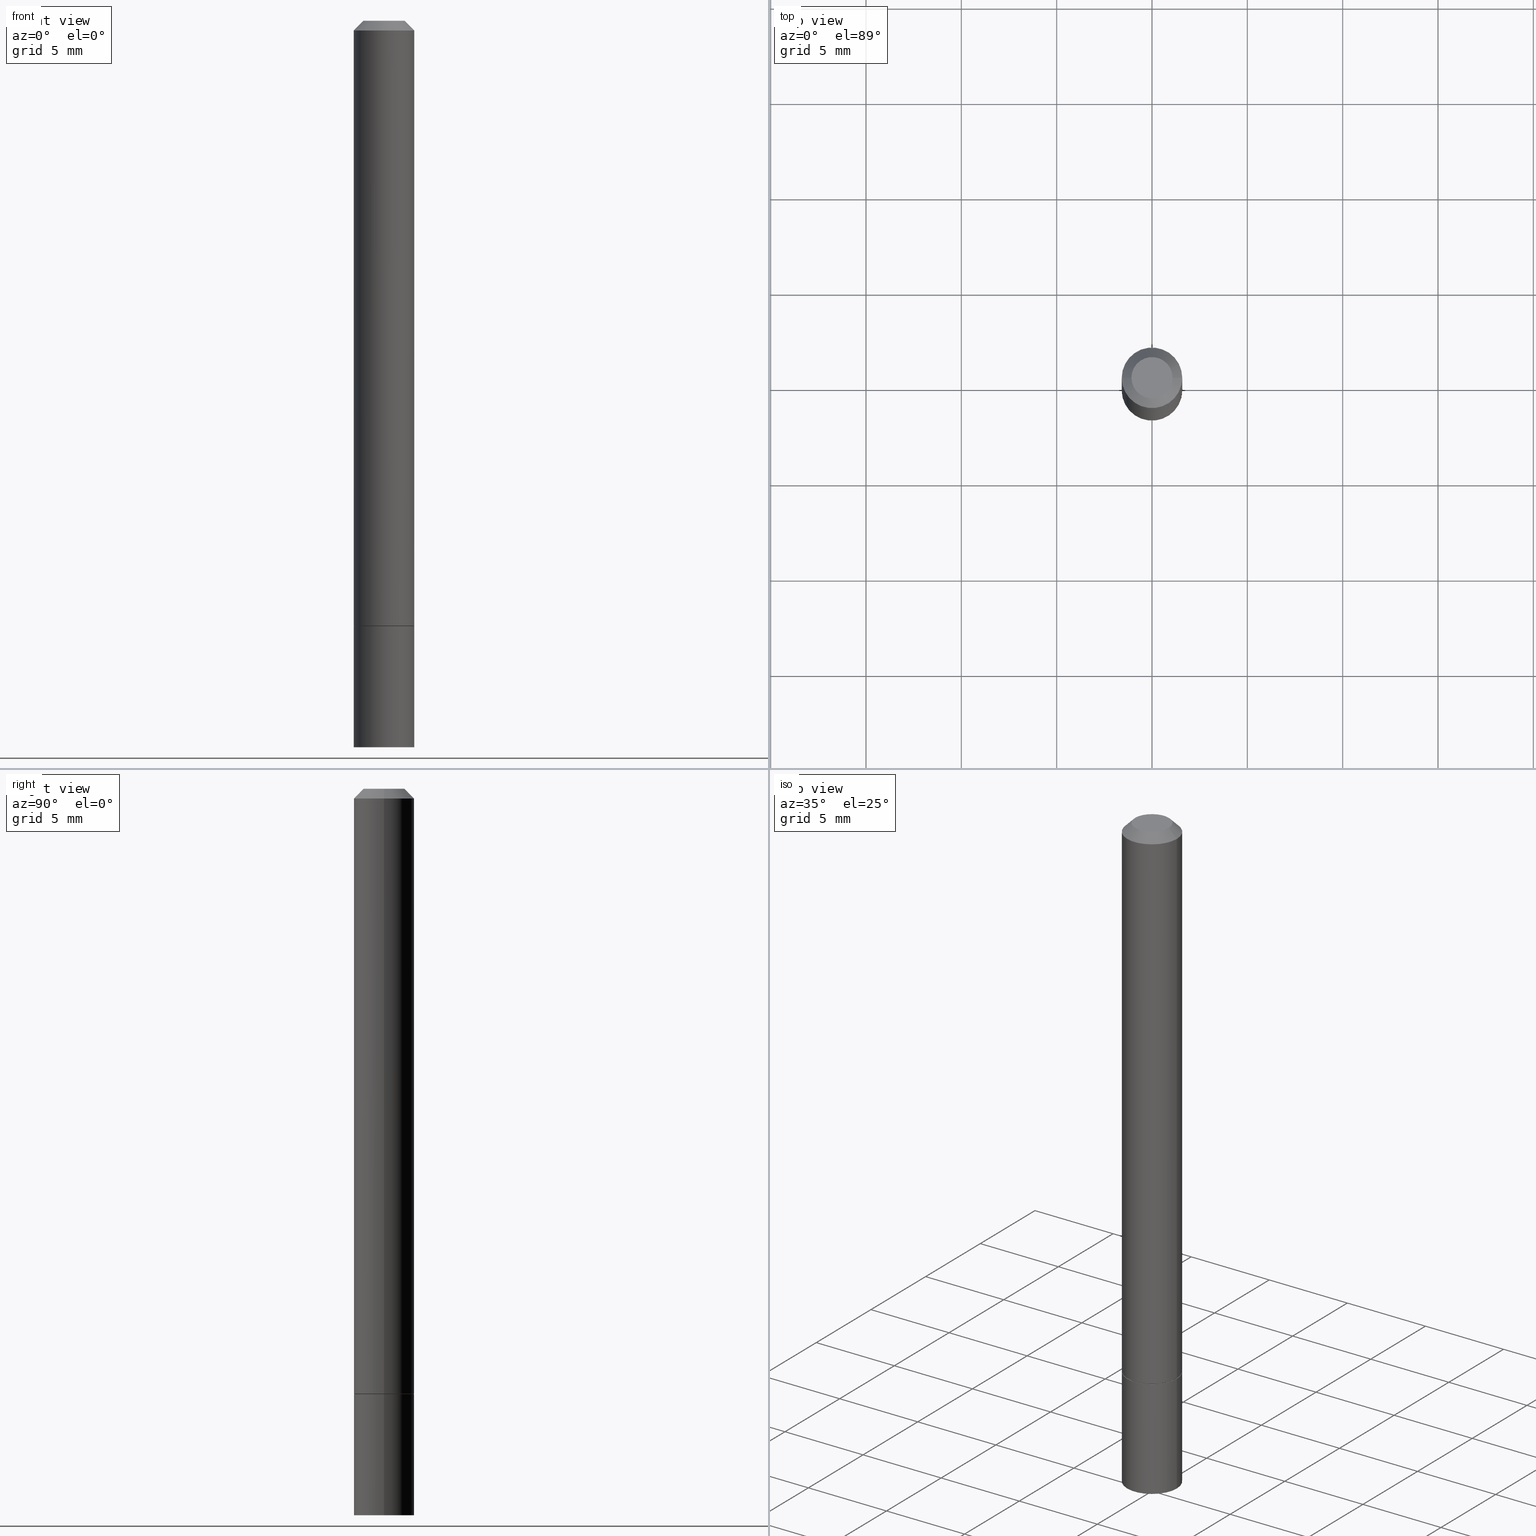
[diagram: canonical four-view strip — front | top / right | iso, engineering-drawing reading convention]
A machine part, canonical four-view strip (front | top / right | iso — engineering-drawing reading convention). The complete STEP part file that produces these views, byte-faithful:
ISO-10303-21;
HEADER;
FILE_DESCRIPTION (( 'STEP AP203' ),
    '1' );
FILE_NAME ('31360.STEP',
    '2024-02-27T13:04:04',
    ( '' ),
    ( '' ),
    'SwSTEP 2.0',
    'SolidWorks 2023',
    '' );
FILE_SCHEMA (( 'CONFIG_CONTROL_DESIGN' ));
ENDSEC;

DATA;
#1 = ORIENTED_EDGE ( 'NONE', *, *, #277, .T. ) ;
#2 = VECTOR ( 'NONE', #300, 39.37007874015748143 ) ;
#3 = EDGE_LOOP ( 'NONE', ( #276, #159, #79, #17 ) ) ;
#4 = DATE_AND_TIME ( #195, #214 ) ;
#5 = ADVANCED_FACE ( 'NONE', ( #310 ), #32, .T. ) ;
#6 = FACE_OUTER_BOUND ( 'NONE', #329, .T. ) ;
#7 = APPROVAL_ROLE ( '' ) ;
#8 = CARTESIAN_POINT ( 'NONE',  ( 0.06250000000000001388, -5.673657175620109846E-15, -1.500000000000000222 ) ) ;
#9 = SHAPE_DEFINITION_REPRESENTATION ( #135, #291 ) ;
#10 = CC_DESIGN_APPROVAL ( #355, ( #166 ) ) ;
#11 = DIRECTION ( 'NONE',  ( 2.438088387897960049E-29, -3.491481338843145188E-15, -1.000000000000000000 ) ) ;
#12 = DIRECTION ( 'NONE',  ( -1.000000000000000000, 6.982962677686265922E-15, -4.876176775795935793E-29 ) ) ;
#13 = CC_DESIGN_PERSON_AND_ORGANIZATION_ASSIGNMENT ( #94, #58, ( #223 ) ) ;
#14 = DIRECTION ( 'NONE',  ( -2.445468806185136597E-29, 3.491481338843145583E-15, 1.000000000000000000 ) ) ;
#15 = SECURITY_CLASSIFICATION ( '', '', #190 ) ;
#16 = EDGE_CURVE ( 'NONE', #162, #106, #140, .T. ) ;
#17 = ORIENTED_EDGE ( 'NONE', *, *, #251, .F. ) ;
#18 = CARTESIAN_POINT ( 'NONE',  ( -0.06250000000000001388, 4.440892098500627148E-16, -3.074334431409317165E-30 ) ) ;
#19 = APPROVAL_PERSON_ORGANIZATION ( #164, #292, #256 ) ;
#20 = ADVANCED_FACE ( 'NONE', ( #222 ), #165, .T. ) ;
#21 = DIRECTION ( 'NONE',  ( 2.438088387897960049E-29, -3.491481338843145188E-15, -1.000000000000000000 ) ) ;
#22 = ORIENTED_EDGE ( 'NONE', *, *, #143, .F. ) ;
#23 = APPROVAL ( #36, 'UNSPECIFIED' ) ;
#24 = CARTESIAN_POINT ( 'NONE',  ( 0.000000000000000000, 0.000000000000000000, 0.000000000000000000 ) ) ;
#25 = CARTESIAN_POINT ( 'NONE',  ( 3.668203209277704895E-29, -5.237222008264718177E-15, -1.500000000000000222 ) ) ;
#26 = CONICAL_SURFACE ( 'NONE', #228, 0.06150000000000001299, 0.7853981633975849475 ) ;
#27 = VERTEX_POINT ( 'NONE', #361 ) ;
#28 = DIRECTION ( 'NONE',  ( -2.445468806185136597E-29, 3.491481338843145583E-15, 1.000000000000000000 ) ) ;
#29 = DIRECTION ( 'NONE',  ( 0.7071067811865459074, -7.319954787623249734E-15, -0.7071067811865491270 ) ) ;
#30 = ORIENTED_EDGE ( 'NONE', *, *, #185, .F. ) ;
#31 = PERSON_AND_ORGANIZATION ( #303, #177 ) ;
#32 = CYLINDRICAL_SURFACE ( 'NONE', #348, 0.06250000000000001388 ) ;
#33 = CIRCLE ( 'NONE', #92, 0.06249999999999995143 ) ;
#34 = AXIS2_PLACEMENT_3D ( 'NONE', #152, #241, #362 ) ;
#35 = EDGE_CURVE ( 'NONE', #54, #81, #33, .T. ) ;
#36 = APPROVAL_STATUS ( 'not_yet_approved' ) ;
#37 = DIRECTION ( 'NONE',  ( -1.000000000000000000, 6.982962677686266711E-15, 0.000000000000000000 ) ) ;
#38 = FACE_OUTER_BOUND ( 'NONE', #3, .T. ) ;
#39 = COORDINATED_UNIVERSAL_TIME_OFFSET ( 5, 0, .BEHIND. ) ;
#40 = DIRECTION ( 'NONE',  ( -2.445468806185136597E-29, 3.491481338843145583E-15, 1.000000000000000000 ) ) ;
#41 = CIRCLE ( 'NONE', #336, 0.04250000000000002387 ) ;
#42 = CARTESIAN_POINT ( 'NONE',  ( -0.06150000000000001299, -3.922069436713247672E-15, -1.249999999999999778 ) ) ;
#43 = DIRECTION ( 'NONE',  ( -2.445468806185136597E-29, 3.491481338843145583E-15, 1.000000000000000000 ) ) ;
#44 = AXIS2_PLACEMENT_3D ( 'NONE', #199, #97, #317 ) ;
#45 = MANIFOLD_SOLID_BREP ( 'Body-Move/Copy2[1]', #139 ) ;
#46 =( NAMED_UNIT ( * ) SI_UNIT ( $, .STERADIAN. ) SOLID_ANGLE_UNIT ( ) );
#47 = CLOSED_SHELL ( 'NONE', ( #132, #5, #118, #20, #219, #264, #148, #168 ) ) ;
#48 = VECTOR ( 'NONE', #154, 39.37007874015748143 ) ;
#49 = EDGE_LOOP ( 'NONE', ( #351, #184 ) ) ;
#50 = MANIFOLD_SOLID_BREP ( 'Body-Move/Copy2[2]', #47 ) ;
#51 = DIRECTION ( 'NONE',  ( -2.445468806185136597E-29, 3.491481338843145583E-15, 1.000000000000000000 ) ) ;
#52 = ORIENTED_EDGE ( 'NONE', *, *, #267, .F. ) ;
#53 = CARTESIAN_POINT ( 'NONE',  ( 4.364351673554284500E-16, 0.06249999999999478195, -1.500000000000000444 ) ) ;
#54 = VERTEX_POINT ( 'NONE', #334 ) ;
#55 = EDGE_CURVE ( 'NONE', #183, #27, #83, .T. ) ;
#56 = LINE ( 'NONE', #273, #213 ) ;
#57 = CIRCLE ( 'NONE', #280, 0.06250000000000001388 ) ;
#58 = PERSON_AND_ORGANIZATION_ROLE ( 'creator' ) ;
#59 = DIRECTION ( 'NONE',  ( -2.445468806185136597E-29, 3.491481338843145583E-15, 1.000000000000000000 ) ) ;
#60 = CARTESIAN_POINT ( 'NONE',  ( 4.890937612370285420E-31, -6.982962677686308865E-17, -0.02000000000000005246 ) ) ;
#61 = CC_DESIGN_PERSON_AND_ORGANIZATION_ASSIGNMENT ( #245, #107, ( #274 ) ) ;
#62 = CYLINDRICAL_SURFACE ( 'NONE', #259, 0.06250000000000001388 ) ;
#63 = DIMENSIONAL_EXPONENTS ( 1.000000000000000000, 0.000000000000000000, 0.000000000000000000, 0.000000000000000000, 0.000000000000000000, 0.000000000000000000, 0.000000000000000000 ) ;
#64 = DIRECTION ( 'NONE',  ( -1.000000000000000000, 6.982962677686265922E-15, -4.876176775795935793E-29 ) ) ;
#65 = PERSON_AND_ORGANIZATION ( #303, #177 ) ;
#66 = ADVANCED_FACE ( 'NONE', ( #88 ), #62, .T. ) ;
#67 = CARTESIAN_POINT ( 'NONE',  ( -0.06250000000000008327, -1.771255699645910018E-15, -1.248999999999999888 ) ) ;
#68 = DIRECTION ( 'NONE',  ( 1.000000000000000000, -6.982962677686267499E-15, 4.870577812114081924E-29 ) ) ;
#69 = CIRCLE ( 'NONE', #44, 0.06150000000000001299 ) ;
#70 = DIRECTION ( 'NONE',  ( -2.445468806185136597E-29, 3.491481338843145583E-15, 1.000000000000000000 ) ) ;
#71 = EDGE_CURVE ( 'NONE', #191, #54, #56, .T. ) ;
#72 = LOCAL_TIME ( 8, 4, 4.000000000000000000, #90 ) ;
#73 = ORIENTED_EDGE ( 'NONE', *, *, #194, .F. ) ;
#74 = DIRECTION ( 'NONE',  ( -2.445468806185136877E-29, 3.491481338843145188E-15, 1.000000000000000000 ) ) ;
#75 = ORIENTED_EDGE ( 'NONE', *, *, #71, .T. ) ;
#76 = ORIENTED_EDGE ( 'NONE', *, *, #284, .T. ) ;
#77 = DIRECTION ( 'NONE',  ( -2.445468806185136597E-29, 3.491481338843145583E-15, 1.000000000000000000 ) ) ;
#78 = AXIS2_PLACEMENT_3D ( 'NONE', #53, #21, #131 ) ;
#79 = ORIENTED_EDGE ( 'NONE', *, *, #230, .F. ) ;
#80 = CARTESIAN_POINT ( 'NONE',  ( -0.06249999999999995143, 3.666055405785282233E-16, -0.02000000000000005246 ) ) ;
#81 = VERTEX_POINT ( 'NONE', #248 ) ;
#82 = APPLICATION_PROTOCOL_DEFINITION ( 'international standard', 'config_control_design', 1994, #99 ) ;
#83 = LINE ( 'NONE', #338, #174 ) ;
#84 = PERSON_AND_ORGANIZATION ( #303, #177 ) ;
#85 = AXIS2_PLACEMENT_3D ( 'NONE', #121, #173, #37 ) ;
#86 = ORIENTED_EDGE ( 'NONE', *, *, #87, .F. ) ;
#87 = EDGE_CURVE ( 'NONE', #246, #54, #366, .T. ) ;
#88 = FACE_OUTER_BOUND ( 'NONE', #295, .T. ) ;
#89 = DIRECTION ( 'NONE',  ( 1.000000000000000000, -6.982962677686267499E-15, 4.876176775795935793E-29 ) ) ;
#90 = COORDINATED_UNIVERSAL_TIME_OFFSET ( 5, 0, .BEHIND. ) ;
#91 = DIRECTION ( 'NONE',  ( -2.438088387897960049E-29, 3.491481338843145188E-15, 1.000000000000000000 ) ) ;
#92 = AXIS2_PLACEMENT_3D ( 'NONE', #60, #218, #311 ) ;
#93 =( GEOMETRIC_REPRESENTATION_CONTEXT ( 3 ) GLOBAL_UNCERTAINTY_ASSIGNED_CONTEXT ( ( #101 ) ) GLOBAL_UNIT_ASSIGNED_CONTEXT ( ( #365, #298, #46 ) ) REPRESENTATION_CONTEXT ( 'NONE', 'WORKASPACE' ) );
#94 = PERSON_AND_ORGANIZATION ( #303, #177 ) ;
#95 = CARTESIAN_POINT ( 'NONE',  ( -0.06250000000000001388, -4.356697631059263102E-15, -1.500000000000000222 ) ) ;
#96 = CARTESIAN_POINT ( 'NONE',  ( 0.06250000000000008327, -4.797295359570480345E-15, -1.248999999999999888 ) ) ;
#97 = DIRECTION ( 'NONE',  ( -2.445468806185136597E-29, 3.491481338843145583E-15, 1.000000000000000000 ) ) ;
#98 = LOCAL_TIME ( 8, 4, 4.000000000000000000, #227 ) ;
#99 = APPLICATION_CONTEXT ( 'configuration controlled 3d designs of mechanical parts and assemblies' ) ;
#100 = DIRECTION ( 'NONE',  ( 0.7071067811866441621, -2.468850131083269169E-15, 0.7071067811864508723 ) ) ;
#101 = UNCERTAINTY_MEASURE_WITH_UNIT (LENGTH_MEASURE( 1.000000000000000082E-05 ), #365, 'distance_accuracy_value', 'NONE');
#102 = DIRECTION ( 'NONE',  ( -2.445468806185136597E-29, 3.491481338843145583E-15, 1.000000000000000000 ) ) ;
#103 = EDGE_LOOP ( 'NONE', ( #52, #332, #212, #114 ) ) ;
#104 = APPLICATION_PROTOCOL_DEFINITION ( 'international standard', 'config_control_design', 1994, #339 ) ;
#105 = AXIS2_PLACEMENT_3D ( 'NONE', #129, #102, #208 ) ;
#106 = VERTEX_POINT ( 'NONE', #67 ) ;
#107 = PERSON_AND_ORGANIZATION_ROLE ( 'design_owner' ) ;
#108 = EDGE_LOOP ( 'NONE', ( #242, #235 ) ) ;
#109 = LINE ( 'NONE', #127, #203 ) ;
#110 = ORIENTED_EDGE ( 'NONE', *, *, #322, .T. ) ;
#111 = PERSON_AND_ORGANIZATION_ROLE ( 'classification_officer' ) ;
#112 = AXIS2_PLACEMENT_3D ( 'NONE', #323, #289, #175 ) ;
#113 = DIRECTION ( 'NONE',  ( -0.7071067811866441621, 7.493145998870704414E-15, 0.7071067811864508723 ) ) ;
#114 = ORIENTED_EDGE ( 'NONE', *, *, #322, .F. ) ;
#115 = CARTESIAN_POINT ( 'NONE',  ( 4.364351673554222871E-16, 0.06249999999999565625, -1.250000000000000222 ) ) ;
#116 = APPROVAL_DATE_TIME ( #249, #23 ) ;
#117 = DIRECTION ( 'NONE',  ( 1.000000000000000000, -6.982962677686269077E-15, 0.000000000000000000 ) ) ;
#118 = ADVANCED_FACE ( 'NONE', ( #6 ), #265, .T. ) ;
#119 = AXIS2_PLACEMENT_3D ( 'NONE', #197, #14, #232 ) ;
#120 = DIRECTION ( 'NONE',  ( 1.000000000000000000, -6.982962677686267499E-15, 4.876176775795935793E-29 ) ) ;
#121 = CARTESIAN_POINT ( 'NONE',  ( 4.890937612370285420E-31, -6.982962677686308865E-17, -0.02000000000000005246 ) ) ;
#122 = AXIS2_PLACEMENT_3D ( 'NONE', #226, #91, #142 ) ;
#123 = AXIS2_PLACEMENT_3D ( 'NONE', #330, #305, #239 ) ;
#124 = ADVANCED_FACE ( 'NONE', ( #288 ), #281, .F. ) ;
#125 = PLANE ( 'NONE',  #122 ) ;
#126 = ORIENTED_EDGE ( 'NONE', *, *, #55, .F. ) ;
#127 = CARTESIAN_POINT ( 'NONE',  ( -0.06250000000000001388, 4.440892098500627148E-16, -3.074334431409317165E-30 ) ) ;
#128 = CIRCLE ( 'NONE', #123, 0.06250000000000008327 ) ;
#129 = CARTESIAN_POINT ( 'NONE',  ( 4.890937612370285420E-31, -6.982962677686308865E-17, -0.02000000000000005246 ) ) ;
#130 = ORIENTED_EDGE ( 'NONE', *, *, #71, .F. ) ;
#131 = DIRECTION ( 'NONE',  ( -1.000000000000000000, 6.982962677686265922E-15, -4.876176775795935793E-29 ) ) ;
#132 = ADVANCED_FACE ( 'NONE', ( #38 ), #205, .T. ) ;
#133 = VERTEX_POINT ( 'NONE', #263 ) ;
#134 = CARTESIAN_POINT ( 'NONE',  ( 0.000000000000000000, 0.000000000000000000, 0.000000000000000000 ) ) ;
#135 = PRODUCT_DEFINITION_SHAPE ( 'NONE', 'NONE',  #223 ) ;
#136 = CARTESIAN_POINT ( 'NONE',  ( 0.06150000000000001299, -4.793803878231636549E-15, -1.249999999999999778 ) ) ;
#137 = DIRECTION ( 'NONE',  ( 1.000000000000000000, -6.982962677686267499E-15, 4.876176775795935793E-29 ) ) ;
#138 = CARTESIAN_POINT ( 'NONE',  ( -0.06150000000000001299, -3.927367891061469286E-15, -1.249999999999999778 ) ) ;
#139 = CLOSED_SHELL ( 'NONE', ( #66, #294, #124, #301 ) ) ;
#140 = LINE ( 'NONE', #138, #325 ) ;
#141 = APPROVAL_STATUS ( 'not_yet_approved' ) ;
#142 = DIRECTION ( 'NONE',  ( 1.000000000000000000, -6.982962677686265922E-15, 4.876176775795935793E-29 ) ) ;
#143 = EDGE_CURVE ( 'NONE', #27, #250, #233, .T. ) ;
#144 = DIRECTION ( 'NONE',  ( 1.000000000000000000, -6.982962677686261189E-15, 0.000000000000000000 ) ) ;
#145 = CALENDAR_DATE ( 2024, 27, 2 ) ;
#146 = CARTESIAN_POINT ( 'NONE',  ( 0.000000000000000000, 0.000000000000000000, 0.000000000000000000 ) ) ;
#147 = FACE_OUTER_BOUND ( 'NONE', #240, .T. ) ;
#148 = ADVANCED_FACE ( 'NONE', ( #285 ), #125, .F. ) ;
#149 = CARTESIAN_POINT ( 'NONE',  ( -0.06250000000000001388, -4.356697631059263102E-15, -1.250000000000000000 ) ) ;
#150 = CIRCLE ( 'NONE', #360, 0.06250000000000001388 ) ;
#151 = ORIENTED_EDGE ( 'NONE', *, *, #251, .T. ) ;
#152 = CARTESIAN_POINT ( 'NONE',  ( 0.000000000000000000, 0.000000000000000000, 0.000000000000000000 ) ) ;
#153 = APPROVAL_PERSON_ORGANIZATION ( #84, #355, #160 ) ;
#154 = DIRECTION ( 'NONE',  ( -0.7071067811865459074, 2.468850131082240100E-15, -0.7071067811865491270 ) ) ;
#155 = CARTESIAN_POINT ( 'NONE',  ( 3.056836007731421306E-29, -4.364351673553932471E-15, -1.250000000000000000 ) ) ;
#156 = ORIENTED_EDGE ( 'NONE', *, *, #35, .T. ) ;
#157 = AXIS2_PLACEMENT_3D ( 'NONE', #163, #193, #363 ) ;
#158 = EDGE_CURVE ( 'NONE', #133, #191, #312, .T. ) ;
#159 = ORIENTED_EDGE ( 'NONE', *, *, #16, .T. ) ;
#160 = APPROVAL_ROLE ( '' ) ;
#161 = PRODUCT_RELATED_PRODUCT_CATEGORY ( 'detail', '', ( #274 ) ) ;
#162 = VERTEX_POINT ( 'NONE', #42 ) ;
#163 = CARTESIAN_POINT ( 'NONE',  ( 4.890937612370285420E-31, -6.982962677686308865E-17, -0.02000000000000005246 ) ) ;
#164 = PERSON_AND_ORGANIZATION ( #303, #177 ) ;
#165 = CONICAL_SURFACE ( 'NONE', #157, 0.06249999999999995143, 0.7853981633974460586 ) ;
#166 = PRODUCT_DEFINITION_FORMATION_WITH_SPECIFIED_SOURCE ( 'ANY', '', #274, .NOT_KNOWN. ) ;
#167 = DIRECTION ( 'NONE',  ( -2.445468806185136877E-29, 3.491481338843145188E-15, 1.000000000000000000 ) ) ;
#168 = ADVANCED_FACE ( 'NONE', ( #147 ), #315, .F. ) ;
#169 = DATE_AND_TIME ( #198, #72 ) ;
#170 = CARTESIAN_POINT ( 'NONE',  ( 0.04250000000000002387, -3.950909582714369417E-16, -3.841661241090128254E-17 ) ) ;
#171 = PERSON_AND_ORGANIZATION ( #303, #177 ) ;
#172 = CARTESIAN_POINT ( 'NONE',  ( 9.394662729016977403E-46, -1.341308853342402453E-31, -3.841661241090370459E-17 ) ) ;
#173 = DIRECTION ( 'NONE',  ( 2.445468806185136597E-29, -3.491481338843145583E-15, -1.000000000000000000 ) ) ;
#174 = VECTOR ( 'NONE', #186, 39.37007874015748143 ) ;
#175 = DIRECTION ( 'NONE',  ( 1.000000000000000000, -6.982962677686261189E-15, 0.000000000000000000 ) ) ;
#176 = CIRCLE ( 'NONE', #299, 0.06250000000000001388 ) ;
#177 = ORGANIZATION ( 'UNSPECIFIED', 'UNSPECIFIED', '' ) ;
#178 = ORIENTED_EDGE ( 'NONE', *, *, #230, .T. ) ;
#179 = FACE_OUTER_BOUND ( 'NONE', #224, .T. ) ;
#180 = EDGE_LOOP ( 'NONE', ( #178, #302, #253, #86 ) ) ;
#181 = AXIS2_PLACEMENT_3D ( 'NONE', #255, #43, #117 ) ;
#182 = DIRECTION ( 'NONE',  ( 1.000000000000000000, 0.000000000000000000, 0.000000000000000000 ) ) ;
#183 = VERTEX_POINT ( 'NONE', #8 ) ;
#184 = ORIENTED_EDGE ( 'NONE', *, *, #364, .T. ) ;
#185 = EDGE_CURVE ( 'NONE', #191, #133, #41, .T. ) ;
#186 = DIRECTION ( 'NONE',  ( -2.445468806185136877E-29, 3.491481338843145188E-15, 1.000000000000000000 ) ) ;
#187 = AXIS2_PLACEMENT_3D ( 'NONE', #282, #40, #341 ) ;
#188 = CC_DESIGN_APPROVAL ( #292, ( #15 ) ) ;
#189 = ORIENTED_EDGE ( 'NONE', *, *, #158, .F. ) ;
#190 = SECURITY_CLASSIFICATION_LEVEL ( 'unclassified' ) ;
#191 = VERTEX_POINT ( 'NONE', #170 ) ;
#192 = CALENDAR_DATE ( 2024, 27, 2 ) ;
#193 = DIRECTION ( 'NONE',  ( 2.445468806185136597E-29, -3.491481338843145583E-15, -1.000000000000000000 ) ) ;
#194 = EDGE_CURVE ( 'NONE', #204, #183, #150, .T. ) ;
#195 = CALENDAR_DATE ( 2024, 27, 2 ) ;
#196 = AXIS2_PLACEMENT_3D ( 'NONE', #257, #229, #344 ) ;
#197 = CARTESIAN_POINT ( 'NONE',  ( 9.394662729016977403E-46, -1.341308853342402453E-31, -3.841661241090370459E-17 ) ) ;
#198 = CALENDAR_DATE ( 2024, 27, 2 ) ;
#199 = CARTESIAN_POINT ( 'NONE',  ( 3.056836007731420185E-29, -4.364351673553931682E-15, -1.249999999999999778 ) ) ;
#200 = EDGE_CURVE ( 'NONE', #340, #162, #236, .T. ) ;
#201 = CARTESIAN_POINT ( 'NONE',  ( 0.06150000000000001299, -4.793803878231636549E-15, -1.249999999999999778 ) ) ;
#202 = CYLINDRICAL_SURFACE ( 'NONE', #243, 0.06250000000000001388 ) ;
#203 = VECTOR ( 'NONE', #74, 39.37007874015748143 ) ;
#204 = VERTEX_POINT ( 'NONE', #95 ) ;
#205 = CONICAL_SURFACE ( 'NONE', #187, 0.06150000000000001299, 0.7853981633975849475 ) ;
#206 = CARTESIAN_POINT ( 'NONE',  ( 3.056836007731420185E-29, -4.364351673553931682E-15, -1.249999999999999778 ) ) ;
#207 = ORIENTED_EDGE ( 'NONE', *, *, #364, .F. ) ;
#208 = DIRECTION ( 'NONE',  ( 1.000000000000000000, -6.982962677686266711E-15, 0.000000000000000000 ) ) ;
#209 = EDGE_CURVE ( 'NONE', #162, #340, #69, .T. ) ;
#210 = ORIENTED_EDGE ( 'NONE', *, *, #209, .T. ) ;
#211 = MECHANICAL_CONTEXT ( 'NONE', #339, 'mechanical' ) ;
#212 = ORIENTED_EDGE ( 'NONE', *, *, #87, .T. ) ;
#213 = VECTOR ( 'NONE', #29, 39.37007874015748143 ) ;
#214 = LOCAL_TIME ( 8, 4, 4.000000000000000000, #275 ) ;
#215 = DIRECTION ( 'NONE',  ( 0.000000000000000000, 0.000000000000000000, 1.000000000000000000 ) ) ;
#216 = ORIENTED_EDGE ( 'NONE', *, *, #185, .T. ) ;
#217 = LINE ( 'NONE', #18, #2 ) ;
#218 = DIRECTION ( 'NONE',  ( -2.445468806185136597E-29, 3.491481338843145583E-15, 1.000000000000000000 ) ) ;
#219 = ADVANCED_FACE ( 'NONE', ( #328 ), #202, .T. ) ;
#220 = ORIENTED_EDGE ( 'NONE', *, *, #158, .T. ) ;
#221 = APPROVAL_DATE_TIME ( #254, #355 ) ;
#222 = FACE_OUTER_BOUND ( 'NONE', #349, .T. ) ;
#223 = PRODUCT_DEFINITION ( 'UNKNOWN', '', #166, #350 ) ;
#224 = EDGE_LOOP ( 'NONE', ( #308, #272, #278, #207 ) ) ;
#225 = DATE_TIME_ROLE ( 'creation_date' ) ;
#226 = CARTESIAN_POINT ( 'NONE',  ( 3.056836007731421306E-29, -4.364351673553932471E-15, -1.250000000000000000 ) ) ;
#227 = COORDINATED_UNIVERSAL_TIME_OFFSET ( 5, 0, .BEHIND. ) ;
#228 = AXIS2_PLACEMENT_3D ( 'NONE', #206, #51, #268 ) ;
#229 = DIRECTION ( 'NONE',  ( -2.445468806185136597E-29, 3.491481338843145583E-15, 1.000000000000000000 ) ) ;
#230 = EDGE_CURVE ( 'NONE', #246, #106, #286, .T. ) ;
#231 = DIRECTION ( 'NONE',  ( -2.445468806185136597E-29, 3.491481338843145583E-15, 1.000000000000000000 ) ) ;
#232 = DIRECTION ( 'NONE',  ( 1.000000000000000000, -6.982962677686267499E-15, 4.870577812114081924E-29 ) ) ;
#233 = CIRCLE ( 'NONE', #181, 0.06250000000000001388 ) ;
#234 = CARTESIAN_POINT ( 'NONE',  ( 3.668203209277704895E-29, -5.237222008264718177E-15, -1.500000000000000222 ) ) ;
#235 = ORIENTED_EDGE ( 'NONE', *, *, #209, .F. ) ;
#236 = CIRCLE ( 'NONE', #196, 0.06150000000000001299 ) ;
#237 = PLANE ( 'NONE',  #78 ) ;
#238 = EDGE_LOOP ( 'NONE', ( #271, #73 ) ) ;
#239 = DIRECTION ( 'NONE',  ( 1.000000000000000000, -6.982962677686261189E-15, 0.000000000000000000 ) ) ;
#240 = EDGE_LOOP ( 'NONE', ( #220, #216 ) ) ;
#241 = DIRECTION ( 'NONE',  ( -2.445468806185136597E-29, 3.491481338843145583E-15, 1.000000000000000000 ) ) ;
#242 = ORIENTED_EDGE ( 'NONE', *, *, #200, .F. ) ;
#243 = AXIS2_PLACEMENT_3D ( 'NONE', #146, #261, #120 ) ;
#244 = CIRCLE ( 'NONE', #105, 0.06249999999999995143 ) ;
#245 = PERSON_AND_ORGANIZATION ( #303, #177 ) ;
#246 = VERTEX_POINT ( 'NONE', #96 ) ;
#247 = CYLINDRICAL_SURFACE ( 'NONE', #34, 0.06250000000000001388 ) ;
#248 = CARTESIAN_POINT ( 'NONE',  ( -0.06249999999999995143, 3.666055405785282233E-16, -0.02000000000000005246 ) ) ;
#249 = DATE_AND_TIME ( #192, #287 ) ;
#250 = VERTEX_POINT ( 'NONE', #149 ) ;
#251 = EDGE_CURVE ( 'NONE', #340, #246, #352, .T. ) ;
#252 = CC_DESIGN_APPROVAL ( #23, ( #223 ) ) ;
#253 = ORIENTED_EDGE ( 'NONE', *, *, #35, .F. ) ;
#254 = DATE_AND_TIME ( #316, #98 ) ;
#255 = CARTESIAN_POINT ( 'NONE',  ( 3.056836007731421306E-29, -4.364351673553932471E-15, -1.250000000000000000 ) ) ;
#256 = APPROVAL_ROLE ( '' ) ;
#257 = CARTESIAN_POINT ( 'NONE',  ( 3.056836007731420185E-29, -4.364351673553931682E-15, -1.249999999999999778 ) ) ;
#258 = DATE_AND_TIME ( #145, #321 ) ;
#259 = AXIS2_PLACEMENT_3D ( 'NONE', #24, #306, #137 ) ;
#260 = AXIS2_PLACEMENT_3D ( 'NONE', #333, #215, #182 ) ;
#261 = DIRECTION ( 'NONE',  ( -2.445468806185136597E-29, 3.491481338843145583E-15, 1.000000000000000000 ) ) ;
#262 = CARTESIAN_POINT ( 'NONE',  ( 2.967759138016664535E-16, 0.04250000000000002387, -1.675962631062856399E-16 ) ) ;
#263 = CARTESIAN_POINT ( 'NONE',  ( -0.04250000000000002387, 3.316907271900973138E-16, -3.841661241090589861E-17 ) ) ;
#264 = ADVANCED_FACE ( 'NONE', ( #319 ), #26, .T. ) ;
#265 = CONICAL_SURFACE ( 'NONE', #85, 0.06249999999999995143, 0.7853981633974460586 ) ;
#266 = CC_DESIGN_DATE_AND_TIME_ASSIGNMENT ( #169, #225, ( #223 ) ) ;
#267 = EDGE_CURVE ( 'NONE', #106, #81, #217, .T. ) ;
#268 = DIRECTION ( 'NONE',  ( 1.000000000000000000, -6.982962677686268288E-15, 0.000000000000000000 ) ) ;
#269 = FACE_OUTER_BOUND ( 'NONE', #238, .T. ) ;
#270 = DIRECTION ( 'NONE',  ( 1.000000000000000000, -6.982962677686269077E-15, 0.000000000000000000 ) ) ;
#271 = ORIENTED_EDGE ( 'NONE', *, *, #290, .F. ) ;
#272 = ORIENTED_EDGE ( 'NONE', *, *, #194, .T. ) ;
#273 = CARTESIAN_POINT ( 'NONE',  ( 0.06249999999999995143, -4.986107516375834292E-16, -0.02000000000000005246 ) ) ;
#274 = PRODUCT ( '31360', '31360', '', ( #211 ) ) ;
#275 = COORDINATED_UNIVERSAL_TIME_OFFSET ( 5, 0, .BEHIND. ) ;
#276 = ORIENTED_EDGE ( 'NONE', *, *, #200, .T. ) ;
#277 = EDGE_CURVE ( 'NONE', #204, #250, #109, .T. ) ;
#278 = ORIENTED_EDGE ( 'NONE', *, *, #55, .T. ) ;
#279 = APPROVAL_DATE_TIME ( #258, #292 ) ;
#280 = AXIS2_PLACEMENT_3D ( 'NONE', #155, #77, #270 ) ;
#281 = PLANE ( 'NONE',  #293 ) ;
#282 = CARTESIAN_POINT ( 'NONE',  ( 3.056836007731420185E-29, -4.364351673553931682E-15, -1.249999999999999778 ) ) ;
#283 = PERSON_AND_ORGANIZATION ( #303, #177 ) ;
#284 = EDGE_CURVE ( 'NONE', #133, #81, #296, .T. ) ;
#285 = FACE_OUTER_BOUND ( 'NONE', #108, .T. ) ;
#286 = CIRCLE ( 'NONE', #112, 0.06250000000000008327 ) ;
#287 = LOCAL_TIME ( 8, 4, 4.000000000000000000, #343 ) ;
#288 = FACE_OUTER_BOUND ( 'NONE', #49, .T. ) ;
#289 = DIRECTION ( 'NONE',  ( -2.445468806185136597E-29, 3.491481338843145583E-15, 1.000000000000000000 ) ) ;
#290 = EDGE_CURVE ( 'NONE', #183, #204, #176, .T. ) ;
#291 = ADVANCED_BREP_SHAPE_REPRESENTATION ( '31360', ( #45, #50, #260 ), #93 ) ;
#292 = APPROVAL ( #141, 'UNSPECIFIED' ) ;
#293 = AXIS2_PLACEMENT_3D ( 'NONE', #115, #11, #12 ) ;
#294 = ADVANCED_FACE ( 'NONE', ( #269 ), #237, .T. ) ;
#295 = EDGE_LOOP ( 'NONE', ( #331, #1, #22, #126 ) ) ;
#296 = LINE ( 'NONE', #80, #48 ) ;
#297 = CC_DESIGN_PERSON_AND_ORGANIZATION_ASSIGNMENT ( #31, #111, ( #15 ) ) ;
#298 =( NAMED_UNIT ( * ) PLANE_ANGLE_UNIT ( ) SI_UNIT ( $, .RADIAN. ) );
#299 = AXIS2_PLACEMENT_3D ( 'NONE', #25, #28, #356 ) ;
#300 = DIRECTION ( 'NONE',  ( -2.445468806185136877E-29, 3.491481338843145188E-15, 1.000000000000000000 ) ) ;
#301 = ADVANCED_FACE ( 'NONE', ( #179 ), #247, .T. ) ;
#302 = ORIENTED_EDGE ( 'NONE', *, *, #267, .T. ) ;
#303 = PERSON ( 'UNSPECIFIED', 'UNSPECIFIED', 'UNSPECIFIED', ('UNSPECIFIED'), ('UNSPECIFIED'), ('UNSPECIFIED') ) ;
#304 = CC_DESIGN_PERSON_AND_ORGANIZATION_ASSIGNMENT ( #283, #313, ( #166 ) ) ;
#305 = DIRECTION ( 'NONE',  ( -2.445468806185136597E-29, 3.491481338843145583E-15, 1.000000000000000000 ) ) ;
#306 = DIRECTION ( 'NONE',  ( -2.445468806185136597E-29, 3.491481338843145583E-15, 1.000000000000000000 ) ) ;
#307 = APPROVAL_STATUS ( 'not_yet_approved' ) ;
#308 = ORIENTED_EDGE ( 'NONE', *, *, #277, .F. ) ;
#309 = PERSON_AND_ORGANIZATION_ROLE ( 'creator' ) ;
#310 = FACE_OUTER_BOUND ( 'NONE', #180, .T. ) ;
#311 = DIRECTION ( 'NONE',  ( 1.000000000000000000, -6.982962677686266711E-15, 0.000000000000000000 ) ) ;
#312 = CIRCLE ( 'NONE', #119, 0.04250000000000002387 ) ;
#313 = PERSON_AND_ORGANIZATION_ROLE ( 'design_supplier' ) ;
#314 = CC_DESIGN_SECURITY_CLASSIFICATION ( #15, ( #166 ) ) ;
#315 = PLANE ( 'NONE',  #342 ) ;
#316 = CALENDAR_DATE ( 2024, 27, 2 ) ;
#317 = DIRECTION ( 'NONE',  ( 1.000000000000000000, -6.982962677686268288E-15, 0.000000000000000000 ) ) ;
#318 = CC_DESIGN_DATE_AND_TIME_ASSIGNMENT ( #4, #337, ( #15 ) ) ;
#319 = FACE_OUTER_BOUND ( 'NONE', #335, .T. ) ;
#320 = VECTOR ( 'NONE', #100, 39.37007874015748143 ) ;
#321 = LOCAL_TIME ( 8, 4, 4.000000000000000000, #39 ) ;
#322 = EDGE_CURVE ( 'NONE', #81, #54, #244, .T. ) ;
#323 = CARTESIAN_POINT ( 'NONE',  ( 3.054390538925235704E-29, -4.360860192215088675E-15, -1.248999999999999888 ) ) ;
#324 = ORIENTED_EDGE ( 'NONE', *, *, #284, .F. ) ;
#325 = VECTOR ( 'NONE', #113, 39.37007874015748143 ) ;
#326 = ORIENTED_EDGE ( 'NONE', *, *, #346, .F. ) ;
#327 = CC_DESIGN_PERSON_AND_ORGANIZATION_ASSIGNMENT ( #171, #309, ( #166 ) ) ;
#328 = FACE_OUTER_BOUND ( 'NONE', #103, .T. ) ;
#329 = EDGE_LOOP ( 'NONE', ( #30, #75, #156, #324 ) ) ;
#330 = CARTESIAN_POINT ( 'NONE',  ( 3.054390538925235704E-29, -4.360860192215088675E-15, -1.248999999999999888 ) ) ;
#331 = ORIENTED_EDGE ( 'NONE', *, *, #290, .T. ) ;
#332 = ORIENTED_EDGE ( 'NONE', *, *, #346, .T. ) ;
#333 = CARTESIAN_POINT ( 'NONE',  ( 0.000000000000000000, 0.000000000000000000, 0.000000000000000000 ) ) ;
#334 = CARTESIAN_POINT ( 'NONE',  ( 0.06249999999999995143, -4.986107516375834292E-16, -0.02000000000000005246 ) ) ;
#335 = EDGE_LOOP ( 'NONE', ( #357, #210, #151, #326 ) ) ;
#336 = AXIS2_PLACEMENT_3D ( 'NONE', #172, #70, #68 ) ;
#337 = DATE_TIME_ROLE ( 'classification_date' ) ;
#338 = CARTESIAN_POINT ( 'NONE',  ( 0.06250000000000001388, -4.364351673553918173E-16, 3.047610484872460571E-30 ) ) ;
#339 = APPLICATION_CONTEXT ( 'configuration controlled 3d designs of mechanical parts and assemblies' ) ;
#340 = VERTEX_POINT ( 'NONE', #136 ) ;
#341 = DIRECTION ( 'NONE',  ( 1.000000000000000000, -6.982962677686268288E-15, 0.000000000000000000 ) ) ;
#342 = AXIS2_PLACEMENT_3D ( 'NONE', #262, #347, #64 ) ;
#343 = COORDINATED_UNIVERSAL_TIME_OFFSET ( 5, 0, .BEHIND. ) ;
#344 = DIRECTION ( 'NONE',  ( 1.000000000000000000, -6.982962677686268288E-15, 0.000000000000000000 ) ) ;
#345 = CARTESIAN_POINT ( 'NONE',  ( 0.06250000000000001388, -4.364351673553918173E-16, 3.047610484872460571E-30 ) ) ;
#346 = EDGE_CURVE ( 'NONE', #106, #246, #128, .T. ) ;
#347 = DIRECTION ( 'NONE',  ( 2.438088387897960049E-29, -3.491481338843145188E-15, -1.000000000000000000 ) ) ;
#348 = AXIS2_PLACEMENT_3D ( 'NONE', #134, #59, #89 ) ;
#349 = EDGE_LOOP ( 'NONE', ( #130, #189, #76, #110 ) ) ;
#350 = DESIGN_CONTEXT ( 'detailed design', #99, 'design' ) ;
#351 = ORIENTED_EDGE ( 'NONE', *, *, #143, .T. ) ;
#352 = LINE ( 'NONE', #201, #320 ) ;
#353 = VECTOR ( 'NONE', #167, 39.37007874015748143 ) ;
#354 = APPROVAL_PERSON_ORGANIZATION ( #65, #23, #7 ) ;
#355 = APPROVAL ( #307, 'UNSPECIFIED' ) ;
#356 = DIRECTION ( 'NONE',  ( 1.000000000000000000, -6.982962677686261189E-15, 0.000000000000000000 ) ) ;
#357 = ORIENTED_EDGE ( 'NONE', *, *, #16, .F. ) ;
#358 = LENGTH_MEASURE_WITH_UNIT ( LENGTH_MEASURE( 0.02539999999999999897 ), #359 );
#359 =( LENGTH_UNIT ( ) NAMED_UNIT ( * ) SI_UNIT ( $, .METRE. ) );
#360 = AXIS2_PLACEMENT_3D ( 'NONE', #234, #231, #144 ) ;
#361 = CARTESIAN_POINT ( 'NONE',  ( 0.06250000000000001388, -4.800786840909324141E-15, -1.250000000000000000 ) ) ;
#362 = DIRECTION ( 'NONE',  ( 1.000000000000000000, -6.982962677686267499E-15, 4.876176775795935793E-29 ) ) ;
#363 = DIRECTION ( 'NONE',  ( -1.000000000000000000, 6.982962677686266711E-15, 0.000000000000000000 ) ) ;
#364 = EDGE_CURVE ( 'NONE', #250, #27, #57, .T. ) ;
#365 =( CONVERSION_BASED_UNIT ( 'INCH', #358 ) LENGTH_UNIT ( ) NAMED_UNIT ( #63 ) );
#366 = LINE ( 'NONE', #345, #353 ) ;
ENDSEC;
END-ISO-10303-21;
